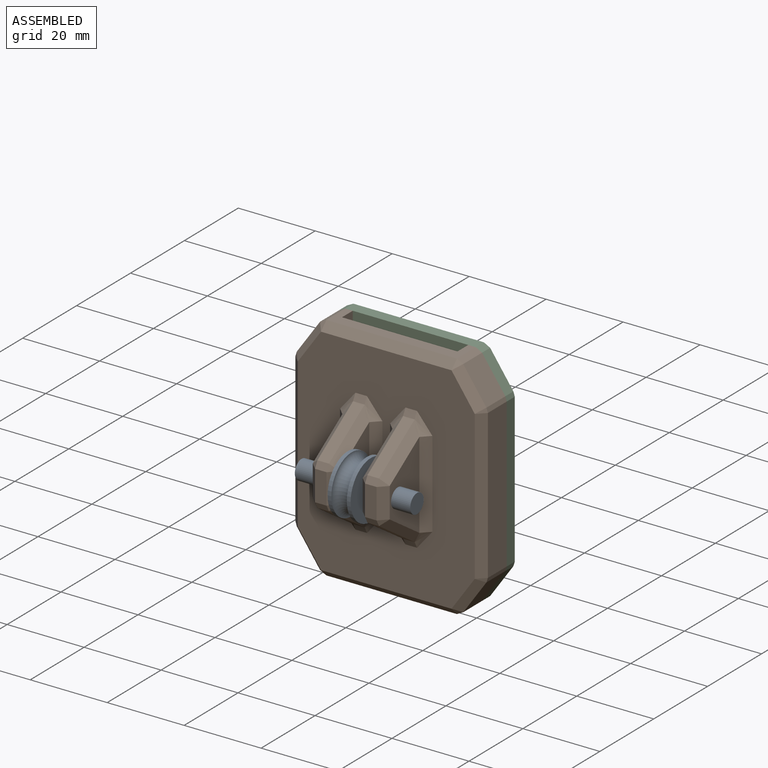
[diagram: assembled view]
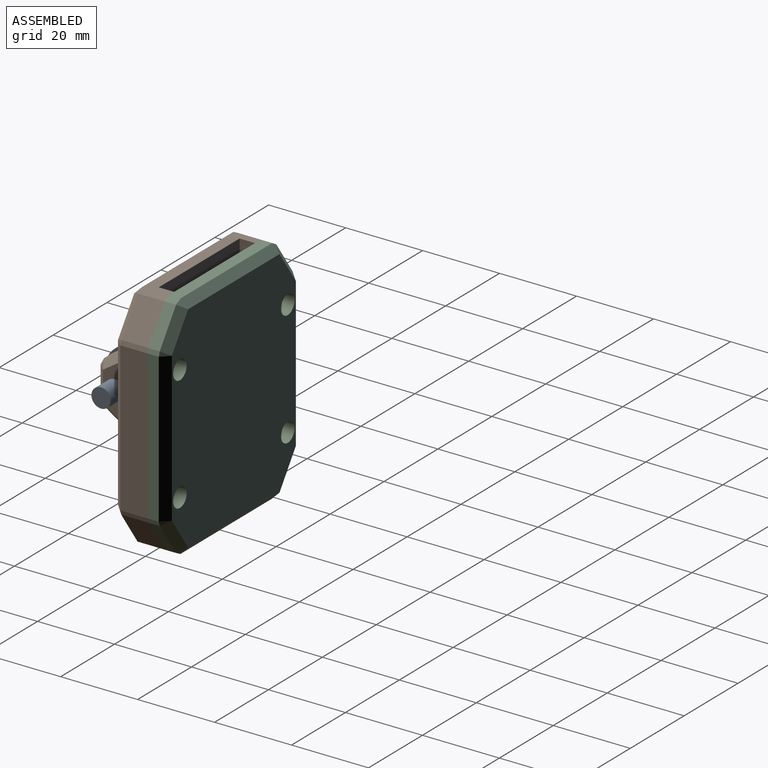
[diagram: assembled view, second angle]
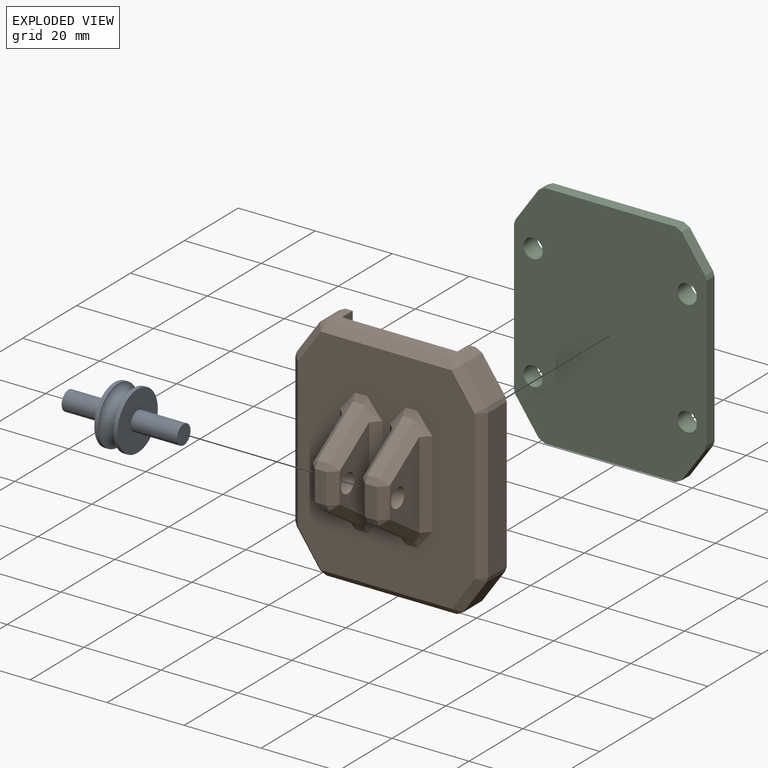
[diagram: exploded view]
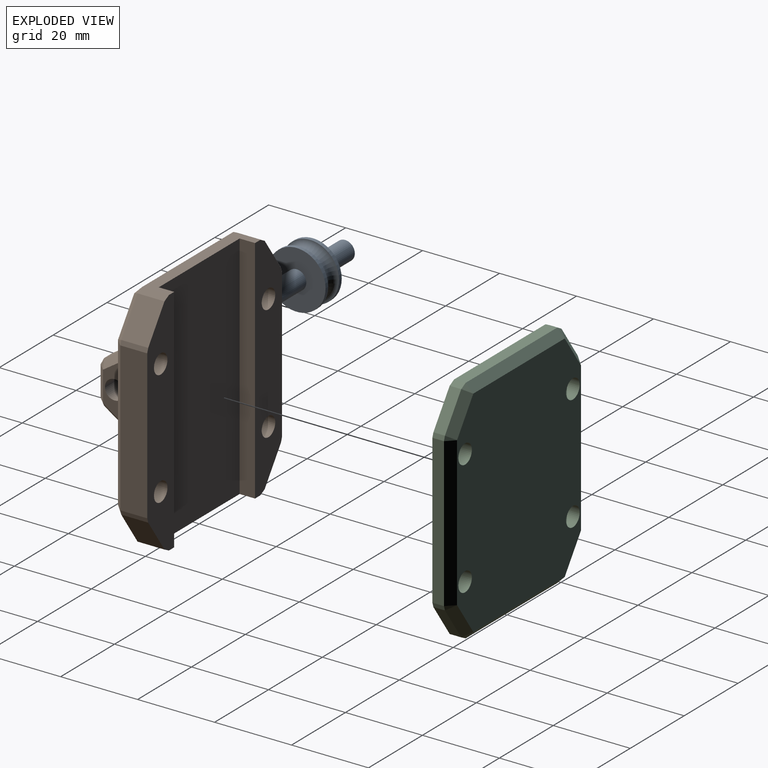
[diagram: exploded view, second angle]
ASSEMBLY  parts=3 mates=3
PART A: 9 faces, bbox 30x19.3x19.3 mm
  f0: cylinder r=2.5mm len=12mm, axis (1,0,0), area 188.5mm2, adj f1,f8
  f1: plane 15x15mm, normal (1,0,0), area 157.1mm2, adj f0,f2
  f2: cylinder r=7.5mm len=15mm, axis (1,0,0), area 47.1mm2, adj f1,f3
  f3: torus R=7.5mm, axis (1,0,0), area 245.8mm2, adj f2,f4
  f4: cylinder r=7.5mm len=15mm, axis (1,0,0), area 47.1mm2, adj f3,f5
  f5: plane 15x15mm, normal (-1,0,0), area 157.1mm2, adj f4,f6
  f6: cylinder r=2.5mm len=12mm, axis (1,0,0), area 188.5mm2, adj f5,f7
  f7: plane 5x5mm, normal (-1,0,0), area 19.6mm2, adj f6
  f8: plane 5x5mm, normal (1,0,0), area 19.6mm2, adj f0
PART B: 98 faces, bbox 50x24x60 mm
  f0: plane 33.92x7mm, normal (0,0,1), area 117.4mm2, adj f1,f4,f5,f26,f27,f52,f55,f75
  f1: plane 60x4mm, normal (-1,0,0), area 240mm2, adj f0,f4,f5,f33
  f2: plane 38.74x7mm, normal (1,0,0), area 271.2mm2, adj f4,f29,f32,f51
  f3: plane 8.63x7mm, normal (0.82,0,0.57), area 73.7mm2, adj f4,f27,f30,f32
  f4: plane 60x10mm, normal (0,1,0), area 489.6mm2, adj f0,f1,f2,f3,f11,f27,f32,f33
  f5: plane 60x30mm, normal (0,1,0), area 1800mm2, adj f0,f1,f33,f52
  f6: plane 56x46mm, normal (0,-1,0), area 1841.5mm2, adj f16,f20,f22,f24,f25,f26,f29,f30
  f7: plane 13.22x8.81mm, normal (0,-0.55,0.83), area 47.7mm2, adj f17,f18,f22,f23
  f8: plane 7.86x3mm, normal (0,-1,0), area 23.6mm2, adj f14,f18,f19,f40
  f9: plane 22.53x11mm, normal (1,0,0), area 147.5mm2, adj f13,f14,f16,f17,f39
  f10: plane 22.53x11mm, normal (-1,0,0), area 147.5mm2, adj f13,f19,f23,f25,f44
  f11: cylinder r=2.5mm len=5mm, axis (0,-1,0), area 62.8mm2, adj f4,f12
  f12: plane 5x5mm, normal (0,1,0), area 19.6mm2, adj f11
  f13: cylinder r=2.5mm len=7mm, axis (-1,0,0), area 110mm2, adj f9,f10
  f14: plane 7.86x2mm, normal (0.71,-0.71,0), area 22.2mm2, adj f8,f9,f15,f38
  f15: plane 2x2mm, normal (0.66,-0.66,0.35), area 2.5mm2, adj f14,f17,f18
  f16: plane 22.53x2mm, normal (0.71,-0.71,0), area 63.7mm2, adj f6,f9,f20,f41
  f17: plane 13.22x10.48mm, normal (0.71,-0.39,0.59), area 41.2mm2, adj f7,f9,f15,f20
  f18: plane 3x1.66mm, normal (0,-0.88,0.47), area 5.7mm2, adj f7,f8,f15,f21
  f19: plane 7.86x2mm, normal (-0.71,-0.71,0), area 22.2mm2, adj f8,f10,f21,f42
  f20: bspline ~4.81x4mm, area 9.7mm2, adj f6,f16,f17,f22
  f21: plane 2x2mm, normal (-0.66,-0.66,0.35), area 2.5mm2, adj f18,f19,f23
  f22: plane 3x1.66mm, normal (0,-0.88,0.47), area 5.7mm2, adj f6,f7,f20,f24
  f23: plane 13.22x10.48mm, normal (-0.71,-0.39,0.59), area 41.2mm2, adj f7,f10,f21,f24
  f24: bspline ~4.81x4mm, area 9.7mm2, adj f6,f22,f23,f25
  f25: plane 22.53x2mm, normal (-0.71,-0.71,0), area 63.7mm2, adj f6,f10,f24,f45
  f26: plane 33.92x2mm, normal (0,-0.71,0.71), area 95.9mm2, adj f0,f6,f28,f76
  f27: plane 7x1.64mm, normal (0.46,0,0.89), area 12.9mm2, adj f0,f3,f4,f28
  f28: plane 2x2mm, normal (0.35,-0.66,0.66), area 2.5mm2, adj f26,f27,f30
  f29: plane 38.74x2mm, normal (0.71,-0.71,0), area 109.6mm2, adj f2,f6,f31,f50
  f30: plane 9.78x7.68mm, normal (0.58,-0.71,0.41), area 29.8mm2, adj f3,f6,f28,f31
  f31: plane 2x2mm, normal (0.69,-0.69,0.22), area 1.7mm2, adj f29,f30,f32
  f32: plane 7x1.15mm, normal (0.95,0,0.3), area 8.4mm2, adj f2,f3,f4,f31
  f33: plane 33.92x7mm, normal (0,0,-1), area 117.4mm2, adj f1,f4,f5,f46,f47,f52,f55,f93
  f34: plane 8.63x7mm, normal (0.82,0,-0.57), area 73.7mm2, adj f4,f47,f49,f51
  f35: plane 13.22x8.81mm, normal (0,-0.55,-0.83), area 47.7mm2, adj f39,f40,f43,f44
  f36: cylinder r=2.5mm len=5mm, axis (0,-1,0), area 62.8mm2, adj f4,f37
  f37: plane 5x5mm, normal (0,1,0), area 19.6mm2, adj f36
  f38: plane 2x2mm, normal (0.66,-0.66,-0.35), area 2.5mm2, adj f14,f39,f40
  f39: plane 13.22x10.48mm, normal (0.71,-0.39,-0.59), area 41.2mm2, adj f9,f35,f38,f41
  f40: plane 3x1.66mm, normal (0,-0.88,-0.47), area 5.7mm2, adj f8,f35,f38,f42
  f41: bspline ~4.81x4mm, area 9.7mm2, adj f6,f16,f39,f43
  f42: plane 2x2mm, normal (-0.66,-0.66,-0.35), area 2.5mm2, adj f19,f40,f44
  f43: plane 3x1.66mm, normal (0,-0.88,-0.47), area 5.7mm2, adj f6,f35,f41,f45
  f44: plane 13.22x10.48mm, normal (-0.71,-0.39,-0.59), area 41.2mm2, adj f10,f35,f42,f45
  f45: bspline ~4.81x4mm, area 9.7mm2, adj f6,f25,f43,f44
  f46: plane 33.92x2mm, normal (0,-0.71,-0.71), area 95.9mm2, adj f6,f33,f48,f94
  f47: plane 7x1.64mm, normal (0.46,0,-0.89), area 12.9mm2, adj f4,f33,f34,f48
  f48: plane 2x2mm, normal (0.35,-0.66,-0.66), area 2.5mm2, adj f46,f47,f49
  f49: plane 9.78x7.68mm, normal (0.58,-0.71,-0.41), area 29.8mm2, adj f6,f34,f48,f50
  f50: plane 2x2mm, normal (0.69,-0.69,-0.22), area 1.7mm2, adj f29,f49,f51
  f51: plane 7x1.15mm, normal (0.95,0,-0.3), area 8.4mm2, adj f2,f4,f34,f50
  f52: plane 60x4mm, normal (1,0,0), area 240mm2, adj f0,f5,f33,f55
  f53: plane 38.74x7mm, normal (-1,0,0), area 271.2mm2, adj f55,f77,f80,f97
  f54: plane 8.63x7mm, normal (-0.82,0,0.57), area 73.7mm2, adj f55,f75,f78,f80
  f55: plane 60x10mm, normal (0,1,0), area 489.6mm2, adj f0,f33,f52,f53,f54,f60,f75,f80
  f56: plane 13.22x8.81mm, normal (0,-0.55,0.83), area 47.7mm2, adj f66,f67,f71,f72
  f57: plane 7.86x3mm, normal (0,-1,0), area 23.6mm2, adj f63,f67,f68,f87
  f58: plane 22.53x11mm, normal (-1,0,0), area 147.5mm2, adj f62,f63,f65,f66,f86
  f59: plane 22.53x11mm, normal (1,0,0), area 147.5mm2, adj f62,f68,f72,f74,f91
  f60: cylinder r=2.5mm len=5mm, axis (0,-1,0), area 62.8mm2, adj f55,f61
  f61: plane 5x5mm, normal (0,1,0), area 19.6mm2, adj f60
  f62: cylinder r=2.5mm len=7mm, axis (1,0,0), area 110mm2, adj f58,f59
  f63: plane 7.86x2mm, normal (-0.71,-0.71,0), area 22.2mm2, adj f57,f58,f64,f85
  f64: plane 2x2mm, normal (-0.66,-0.66,0.35), area 2.5mm2, adj f63,f66,f67
  f65: plane 22.53x2mm, normal (-0.71,-0.71,0), area 63.7mm2, adj f6,f58,f69,f88
  f66: plane 13.22x10.48mm, normal (-0.71,-0.39,0.59), area 41.2mm2, adj f56,f58,f64,f69
  f67: plane 3x1.66mm, normal (0,-0.88,0.47), area 5.7mm2, adj f56,f57,f64,f70
  f68: plane 7.86x2mm, normal (0.71,-0.71,0), area 22.2mm2, adj f57,f59,f70,f89
  f69: bspline ~4.81x4mm, area 9.7mm2, adj f6,f65,f66,f71
  f70: plane 2x2mm, normal (0.66,-0.66,0.35), area 2.5mm2, adj f67,f68,f72
  f71: plane 3x1.66mm, normal (0,-0.88,0.47), area 5.7mm2, adj f6,f56,f69,f73
  f72: plane 13.22x10.48mm, normal (0.71,-0.39,0.59), area 41.2mm2, adj f56,f59,f70,f73
  f73: bspline ~4.81x4mm, area 9.7mm2, adj f6,f71,f72,f74
  f74: plane 22.53x2mm, normal (0.71,-0.71,0), area 63.7mm2, adj f6,f59,f73,f92
  f75: plane 7x1.64mm, normal (-0.46,0,0.89), area 12.9mm2, adj f0,f54,f55,f76
  f76: plane 2x2mm, normal (-0.35,-0.66,0.66), area 2.5mm2, adj f26,f75,f78
  f77: plane 38.74x2mm, normal (-0.71,-0.71,0), area 109.6mm2, adj f6,f53,f79,f96
  f78: plane 9.78x7.68mm, normal (-0.58,-0.71,0.41), area 29.8mm2, adj f6,f54,f76,f79
  f79: plane 2x2mm, normal (-0.69,-0.69,0.22), area 1.7mm2, adj f77,f78,f80
  f80: plane 7x1.15mm, normal (-0.95,0,0.3), area 8.4mm2, adj f53,f54,f55,f79
  f81: plane 8.63x7mm, normal (-0.82,0,-0.57), area 73.7mm2, adj f55,f93,f95,f97
  f82: plane 13.22x8.81mm, normal (0,-0.55,-0.83), area 47.7mm2, adj f86,f87,f90,f91
  f83: cylinder r=2.5mm len=5mm, axis (0,-1,0), area 62.8mm2, adj f55,f84
  f84: plane 5x5mm, normal (0,1,0), area 19.6mm2, adj f83
  f85: plane 2x2mm, normal (-0.66,-0.66,-0.35), area 2.5mm2, adj f63,f86,f87
  f86: plane 13.22x10.48mm, normal (-0.71,-0.39,-0.59), area 41.2mm2, adj f58,f82,f85,f88
  f87: plane 3x1.66mm, normal (0,-0.88,-0.47), area 5.7mm2, adj f57,f82,f85,f89
  f88: bspline ~4.81x4mm, area 9.7mm2, adj f6,f65,f86,f90
  f89: plane 2x2mm, normal (0.66,-0.66,-0.35), area 2.5mm2, adj f68,f87,f91
  f90: plane 3x1.66mm, normal (0,-0.88,-0.47), area 5.7mm2, adj f6,f82,f88,f92
  f91: plane 13.22x10.48mm, normal (0.71,-0.39,-0.59), area 41.2mm2, adj f59,f82,f89,f92
  f92: bspline ~4.81x4mm, area 9.7mm2, adj f6,f74,f90,f91
  f93: plane 7x1.64mm, normal (-0.46,0,-0.89), area 12.9mm2, adj f33,f55,f81,f94
  f94: plane 2x2mm, normal (-0.35,-0.66,-0.66), area 2.5mm2, adj f46,f93,f95
  f95: plane 9.78x7.68mm, normal (-0.58,-0.71,-0.41), area 29.8mm2, adj f6,f81,f94,f96
  f96: plane 2x2mm, normal (-0.69,-0.69,-0.22), area 1.7mm2, adj f77,f95,f97
  f97: plane 7x1.15mm, normal (-0.95,0,-0.3), area 8.4mm2, adj f53,f55,f81,f96
PART C: 38 faces, bbox 50x5x60 mm
  f0: plane 33.92x3mm, normal (0,0,1), area 101.8mm2, adj f4,f6,f7,f25
  f1: plane 38.74x3mm, normal (1,0,0), area 116.2mm2, adj f4,f8,f9,f18
  f2: plane 8.63x6.04mm, normal (0.82,0,0.57), area 31.6mm2, adj f4,f6,f9,f12
  f3: plane 56x46mm, normal (0,1,0), area 2393.2mm2, adj f5,f7,f8,f12,f15,f17,f21,f24
  f4: plane 60x50mm, normal (0,-1,0), area 2779.2mm2, adj f0,f1,f2,f5,f6,f9,f13,f14
  f5: cylinder r=2.5mm len=5mm, axis (0,-1,0), area 78.5mm2, adj f3,f4
  f6: plane 3x1.64mm, normal (0.46,0,0.89), area 5.5mm2, adj f0,f2,f4,f10
  f7: plane 33.92x2mm, normal (0,0.71,0.71), area 95.9mm2, adj f0,f3,f10,f28
  f8: plane 38.74x2mm, normal (0.71,0.71,0), area 109.6mm2, adj f1,f3,f11,f20
  f9: plane 3x1.15mm, normal (0.95,0,0.3), area 3.6mm2, adj f1,f2,f4,f11
  f10: plane 2x2mm, normal (0.35,0.66,0.66), area 2.5mm2, adj f6,f7,f12
  f11: plane 2x2mm, normal (0.69,0.69,0.22), area 1.7mm2, adj f8,f9,f12
  f12: plane 9.78x7.68mm, normal (0.58,0.71,0.41), area 29.8mm2, adj f2,f3,f10,f11
  f13: plane 33.92x3mm, normal (0,0,-1), area 101.8mm2, adj f4,f16,f17,f33
  f14: plane 8.63x6.04mm, normal (0.82,0,-0.57), area 31.6mm2, adj f4,f16,f18,f21
  f15: cylinder r=2.5mm len=5mm, axis (0,-1,0), area 78.5mm2, adj f3,f4
  f16: plane 3x1.64mm, normal (0.46,0,-0.89), area 5.5mm2, adj f4,f13,f14,f19
  f17: plane 33.92x2mm, normal (0,0.71,-0.71), area 95.9mm2, adj f3,f13,f19,f35
  f18: plane 3x1.15mm, normal (0.95,0,-0.3), area 3.6mm2, adj f1,f4,f14,f20
  f19: plane 2x2mm, normal (0.35,0.66,-0.66), area 2.5mm2, adj f16,f17,f21
  f20: plane 2x2mm, normal (0.69,0.69,-0.22), area 1.7mm2, adj f8,f18,f21
  f21: plane 9.78x7.68mm, normal (0.58,0.71,-0.41), area 29.8mm2, adj f3,f14,f19,f20
  f22: plane 38.74x3mm, normal (-1,0,0), area 116.2mm2, adj f4,f26,f27,f34
  f23: plane 8.63x6.04mm, normal (-0.82,0,0.57), area 31.6mm2, adj f4,f25,f27,f30
  f24: cylinder r=2.5mm len=5mm, axis (0,-1,0), area 78.5mm2, adj f3,f4
  f25: plane 3x1.64mm, normal (-0.46,0,0.89), area 5.5mm2, adj f0,f4,f23,f28
  f26: plane 38.74x2mm, normal (-0.71,0.71,0), area 109.6mm2, adj f3,f22,f29,f36
  f27: plane 3x1.15mm, normal (-0.95,0,0.3), area 3.6mm2, adj f4,f22,f23,f29
  f28: plane 2x2mm, normal (-0.35,0.66,0.66), area 2.5mm2, adj f7,f25,f30
  f29: plane 2x2mm, normal (-0.69,0.69,0.22), area 1.7mm2, adj f26,f27,f30
  f30: plane 9.78x7.68mm, normal (-0.58,0.71,0.41), area 29.8mm2, adj f3,f23,f28,f29
  f31: plane 8.63x6.04mm, normal (-0.82,0,-0.57), area 31.6mm2, adj f4,f33,f34,f37
  f32: cylinder r=2.5mm len=5mm, axis (0,-1,0), area 78.5mm2, adj f3,f4
  f33: plane 3x1.64mm, normal (-0.46,0,-0.89), area 5.5mm2, adj f4,f13,f31,f35
  f34: plane 3x1.15mm, normal (-0.95,0,-0.3), area 3.6mm2, adj f4,f22,f31,f36
  f35: plane 2x2mm, normal (-0.35,0.66,-0.66), area 2.5mm2, adj f17,f33,f37
  f36: plane 2x2mm, normal (-0.69,0.69,-0.22), area 1.7mm2, adj f26,f34,f37
  f37: plane 9.78x7.68mm, normal (-0.58,0.71,-0.41), area 29.8mm2, adj f3,f31,f35,f36
PLACE A at identity
PLACE B at identity
PLACE C at identity
MATE revolute C.f15 <-> B.f36  axis (0,-1,0) through (20,4,-15)mm
MATE revolute C.f5 <-> B.f11  axis (0,-1,0) through (20,4,15)mm
MATE revolute A.f3 <-> B.f13  axis (1,0,0) through (3,-15,0)mm
